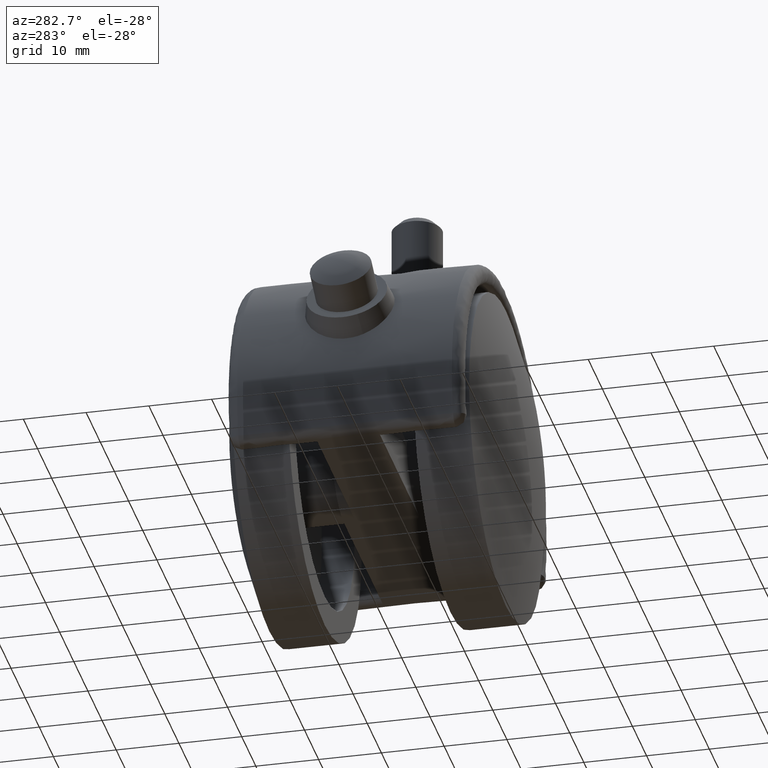
[diagram: clean part render]
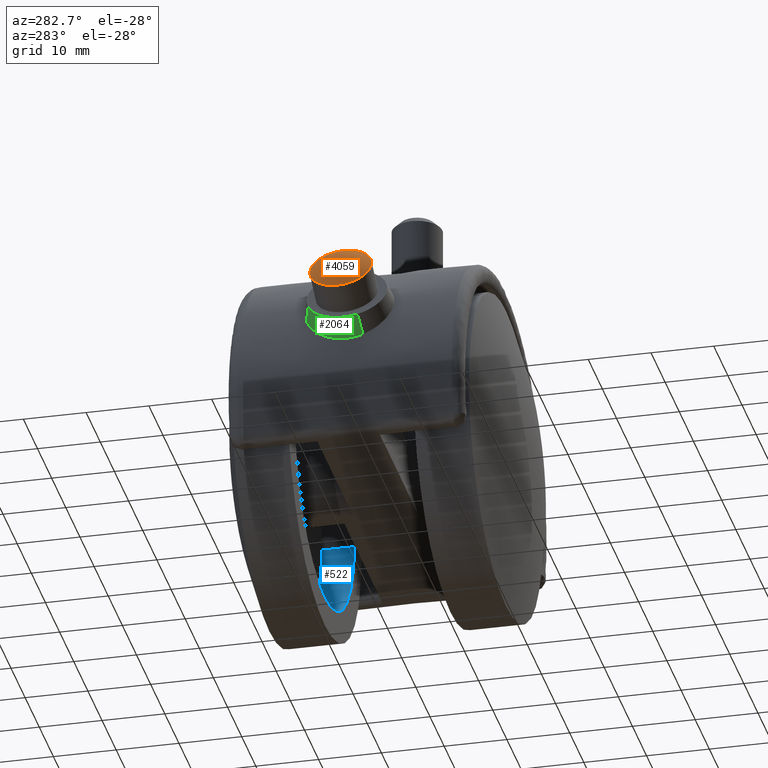
[diagram: same view with three faces highlighted in distinct colors, each labeled with its STEP entity id]
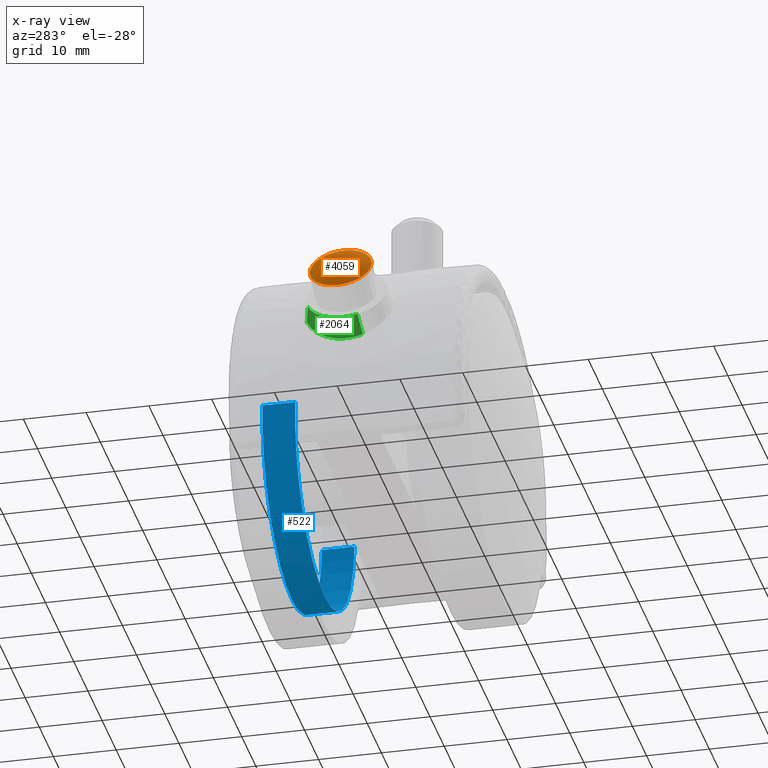
[diagram: x-ray of the same camera — body ghosted, the three highlighted faces saturated]
A machine part, auxiliary view with three faces highlighted in distinct colors.
The next image is the same camera in x-ray (body ghosted, the three faces saturated) — at least one of them is partly hidden behind the body in this view.
Their STEP definitions:

[orange] entity #4059 — the highlighted face is a freeform B-spline surface patch.
#1793=CARTESIAN_POINT('',(-33.455927655312657,4.865747021938725,18.051062189692932));
#1794=VERTEX_POINT('',#1793);
#1795=CARTESIAN_POINT('',(-30.799962047522211,0.0,22.842551026341781));
#1796=VERTEX_POINT('',#1795);
#1797=CARTESIAN_POINT('',(-33.455927655312657,4.865747021938725,18.051062189692932));
#1798=CARTESIAN_POINT('',(-33.316220272804124,4.900000450132801,18.303100981808146));
#1799=CARTESIAN_POINT('',(-33.175529388332649,4.900000450132800,18.556914058448150));
#1800=CARTESIAN_POINT('',(-30.799962047522204,4.900000450132801,22.842551026341777));
#1801=CARTESIAN_POINT('',(-30.799962047522211,0.0,22.842551026341781));
#1809=(BOUNDED_CURVE()B_SPLINE_CURVE(2,(#1797,#1798,#1799,#1800,#1801),.UNSPECIFIED.,.F.,.U.)B_SPLINE_CURVE_WITH_KNOTS((3,2,3),(0.229562473510235,0.250000000000000,0.500000000000000),.UNSPECIFIED.)CURVE()GEOMETRIC_REPRESENTATION_ITEM()RATIONAL_B_SPLINE_CURVE((0.956026754177284,0.976055948327310,1.0,0.707106781186547,1.0))REPRESENTATION_ITEM(''));
#1810=EDGE_CURVE('',#1794,#1796,#1809,.T.);
#1812=CARTESIAN_POINT('',(-33.030506821038557,-4.890861152804961,18.818541697831630));
#1813=VERTEX_POINT('',#1812);
#1814=CARTESIAN_POINT('',(-30.799962047522211,0.0,22.842551026341781));
#1815=CARTESIAN_POINT('',(-30.799962047522214,-4.609464721029318,22.842551026341781));
#1816=CARTESIAN_POINT('',(-33.030506821038564,-4.890861152804961,18.818541697831630));
#1824=(BOUNDED_CURVE()B_SPLINE_CURVE(2,(#1814,#1815,#1816),.UNSPECIFIED.,.F.,.U.)B_SPLINE_CURVE_WITH_KNOTS((3,3),(0.500000000000000,0.739333132983125),.UNSPECIFIED.)CURVE()GEOMETRIC_REPRESENTATION_ITEM()RATIONAL_B_SPLINE_CURVE((1.0,0.719603793247458,0.976072407604275))REPRESENTATION_ITEM(''));
#1825=EDGE_CURVE('',#1796,#1813,#1824,.T.);
#1892=CARTESIAN_POINT('',(-35.551096729143083,0.0,14.271277090554520));
#1893=VERTEX_POINT('',#1892);
#1894=CARTESIAN_POINT('',(-35.551096729143083,0.0,14.271277090554520));
#1895=CARTESIAN_POINT('',(-35.551096729143076,4.352055576817920,14.271277090554520));
#1896=CARTESIAN_POINT('',(-33.455927655312657,4.865747021938725,18.051062189692932));
#1904=(BOUNDED_CURVE()B_SPLINE_CURVE(2,(#1894,#1895,#1896),.UNSPECIFIED.,.F.,.U.)B_SPLINE_CURVE_WITH_KNOTS((3,3),(0.0,0.229562473510235),.UNSPECIFIED.)CURVE()GEOMETRIC_REPRESENTATION_ITEM()RATIONAL_B_SPLINE_CURVE((1.0,0.731050832859237,0.956026754177284))REPRESENTATION_ITEM(''));
#1905=EDGE_CURVE('',#1893,#1794,#1904,.T.);
#1939=CARTESIAN_POINT('',(-33.030506821038564,-4.890861152804961,18.818541697831630));
#1940=CARTESIAN_POINT('',(-33.102950418119917,-4.900000450132801,18.687849987938250));
#1941=CARTESIAN_POINT('',(-33.175529388332649,-4.900000450132800,18.556914058448150));
#1942=CARTESIAN_POINT('',(-35.551096729143083,-4.900000450132801,14.271277090554516));
#1943=CARTESIAN_POINT('',(-35.551096729143083,0.0,14.271277090554520));
#1951=(BOUNDED_CURVE()B_SPLINE_CURVE(2,(#1939,#1940,#1941,#1942,#1943),.UNSPECIFIED.,.F.,.U.)B_SPLINE_CURVE_WITH_KNOTS((3,2,3),(0.739333132983125,0.750000000000000,1.0),.UNSPECIFIED.)CURVE()GEOMETRIC_REPRESENTATION_ITEM()RATIONAL_B_SPLINE_CURVE((0.976072407604275,0.987502987939089,1.0,0.707106781186547,1.0))REPRESENTATION_ITEM(''));
#1952=EDGE_CURVE('',#1813,#1893,#1951,.T.);
#4029=CARTESIAN_POINT('',(-29.455881733607754,-4.988730261542560,22.199089514041539));
#4030=CARTESIAN_POINT('',(-30.388018948306780,-2.663087549163294,23.101609007809419));
#4031=CARTESIAN_POINT('',(-30.388018952618747,2.663102288835542,23.101609010199578));
#4032=CARTESIAN_POINT('',(-29.455872065869372,4.988754387558935,22.199080150142361));
#4033=CARTESIAN_POINT('',(-31.679185146443892,-5.326190869119451,20.772404487472123));
#4034=CARTESIAN_POINT('',(-32.840249244639693,-2.856300231945620,21.636899187114100));
#4035=CARTESIAN_POINT('',(-32.840249249264488,2.856316039588207,21.636899189677671));
#4036=CARTESIAN_POINT('',(-31.679173158079998,5.326216372830353,20.772395559642774));
#4037=CARTESIAN_POINT('',(-34.261430515609966,-5.326190869119451,16.113910783773751));
#4038=CARTESIAN_POINT('',(-35.609833818132827,-2.856300231945620,16.640436631100432));
#4039=CARTESIAN_POINT('',(-35.609833822757643,2.856316039588207,16.640436633664009));
#4040=CARTESIAN_POINT('',(-34.261416591516465,5.326216372830353,16.113905348092885));
#4041=CARTESIAN_POINT('',(-34.293156714210788,-4.988730191015766,13.472414387067468));
#4042=CARTESIAN_POINT('',(-35.552494086392315,-2.663087508968022,13.784649128373339));
#4043=CARTESIAN_POINT('',(-35.552494090704265,2.663102248640047,13.784649130763507));
#4044=CARTESIAN_POINT('',(-34.293143650053445,4.988754317031851,13.472411150470730));
#4052=(BOUNDED_SURFACE()B_SPLINE_SURFACE(2,2,((#4029,#4033,#4037,#4041),(#4030,#4034,#4038,#4042),(#4031,#4035,#4039,#4043),(#4032,#4036,#4040,#4044)),.UNSPECIFIED.,.F.,.F.,.U.)B_SPLINE_SURFACE_WITH_KNOTS((3,1,3),(3,1,3),(0.0,5.512628350733199,11.025287247933569),(0.0,5.512749071416997,11.025498757863531),.UNSPECIFIED.)GEOMETRIC_REPRESENTATION_ITEM()RATIONAL_B_SPLINE_SURFACE(((1.145101088485131,1.072548955480390,1.072548955480390,1.145101104673681),(1.072552133004741,1.0,1.0,1.072552149193291),(1.072552133004741,1.0,1.0,1.072552149193291),(1.145101892501032,1.072549759496291,1.072549759496291,1.145101908689582)))REPRESENTATION_ITEM('')SURFACE());
#4053=ORIENTED_EDGE('',*,*,#1952,.F.);
#4054=ORIENTED_EDGE('',*,*,#1825,.F.);
#4055=ORIENTED_EDGE('',*,*,#1810,.F.);
#4056=ORIENTED_EDGE('',*,*,#1905,.F.);
#4057=EDGE_LOOP('',(#4053,#4054,#4055,#4056));
#4058=FACE_OUTER_BOUND('',#4057,.T.);
#4059=ADVANCED_FACE('',(#4058),#4052,.T.);

[blue] entity #522 — the highlighted face is a freeform B-spline surface patch.
#420=CARTESIAN_POINT('',(20.853200053636993,-15.338726066619103,2.478718927791928));
#421=CARTESIAN_POINT('',(20.924139924420714,-15.338726066619095,1.881909301397531));
#422=CARTESIAN_POINT('',(20.960830766859200,-15.338726066619101,1.282019330231997));
#423=CARTESIAN_POINT('',(22.242850097091193,-15.338726066619094,-19.678811436627200));
#424=CARTESIAN_POINT('',(1.282019330231997,-15.338726066619101,-20.960830766859200));
#425=CARTESIAN_POINT('',(-19.678811436627200,-15.338726066619094,-22.242850097091193));
#426=CARTESIAN_POINT('',(-20.960830766859200,-15.338726066619101,-1.282019330231997));
#427=CARTESIAN_POINT('',(20.853200053636993,-9.866531848334523,2.478718927791928));
#428=CARTESIAN_POINT('',(20.924139924420714,-9.866531848334521,1.881909301397531));
#429=CARTESIAN_POINT('',(20.960830766859200,-9.866531848334521,1.282019330231997));
#430=CARTESIAN_POINT('',(22.242850097091193,-9.866531848334521,-19.678811436627200));
#431=CARTESIAN_POINT('',(1.282019330231997,-9.866531848334521,-20.960830766859200));
#432=CARTESIAN_POINT('',(-19.678811436627200,-9.866531848334521,-22.242850097091193));
#433=CARTESIAN_POINT('',(-20.960830766859200,-9.866531848334521,-1.282019330231997));
#441=(BOUNDED_SURFACE()B_SPLINE_SURFACE(2,1,((#420,#427),(#421,#428),(#422,#429),(#423,#430),(#424,#431),(#425,#432),(#426,#433)),.UNSPECIFIED.,.F.,.F.,.U.)B_SPLINE_SURFACE_WITH_KNOTS((3,2,2,3),(2,2),(0.0,1.391757569573601,36.185696808913569,70.979636048253539),(0.0,5.472194218284579),.UNSPECIFIED.)GEOMETRIC_REPRESENTATION_ITEM()RATIONAL_B_SPLINE_SURFACE(((0.977505800795127,0.977505800795127),(0.988284271247462,0.988284271247462),(1.0,1.0),(0.707106781186548,0.707106781186548),(1.0,1.0),(0.707106781186548,0.707106781186548),(1.0,1.0)))REPRESENTATION_ITEM('')SURFACE());
#442=CARTESIAN_POINT('',(20.853200299682619,-15.208513235725940,2.478716857834337));
#443=VERTEX_POINT('',#442);
#444=CARTESIAN_POINT('',(0.0,-15.208513235725951,-21.0));
#445=VERTEX_POINT('',#444);
#446=CARTESIAN_POINT('',(20.853200299682619,-15.208513235725945,2.478716857834337));
#447=CARTESIAN_POINT('',(20.999999999999996,-15.208513235725947,1.243705466769669));
#448=CARTESIAN_POINT('',(21.0,-15.208513235725951,0.0));
#449=CARTESIAN_POINT('',(21.000000000000007,-15.208513235725951,-21.000000000000007));
#450=CARTESIAN_POINT('',(0.0,-15.208513235725951,-21.0));
#458=(BOUNDED_CURVE()B_SPLINE_CURVE(2,(#446,#447,#448,#449,#450),.UNSPECIFIED.,.F.,.U.)B_SPLINE_CURVE_WITH_KNOTS((3,2,3),(0.229562490291466,0.250000000000000,0.500000000000000),.UNSPECIFIED.)CURVE()GEOMETRIC_REPRESENTATION_ITEM()RATIONAL_B_SPLINE_CURVE((0.956026787069185,0.976055967987745,1.0,0.707106781186547,1.0))REPRESENTATION_ITEM(''));
#459=EDGE_CURVE('',#443,#445,#458,.T.);
#460=ORIENTED_EDGE('',*,*,#459,.F.);
#461=CARTESIAN_POINT('',(20.853200296721891,-10.0,2.478716882742674));
#462=VERTEX_POINT('',#461);
#463=CARTESIAN_POINT('',(20.853200299682619,-15.208513235725940,2.478716857834337));
#464=CARTESIAN_POINT('',(20.853200296721891,-10.0,2.478716882742674));
#465=QUASI_UNIFORM_CURVE('',1,(#463,#464),.UNSPECIFIED.,.F.,.U.);
#466=EDGE_CURVE('',#443,#462,#465,.T.);
#467=ORIENTED_EDGE('',*,*,#466,.T.);
#468=CARTESIAN_POINT('',(0.0,-10.0,-21.0));
#469=VERTEX_POINT('',#468);
#470=CARTESIAN_POINT('',(20.853200296721891,-10.0,2.478716882742674));
#471=CARTESIAN_POINT('',(20.999999999999996,-10.0,1.243705479355500));
#472=CARTESIAN_POINT('',(21.0,-10.0,0.0));
#473=CARTESIAN_POINT('',(21.000000000000007,-10.0,-21.000000000000007));
#474=CARTESIAN_POINT('',(0.0,-10.0,-21.0));
#482=(BOUNDED_CURVE()B_SPLINE_CURVE(2,(#470,#471,#472,#473,#474),.UNSPECIFIED.,.F.,.U.)B_SPLINE_CURVE_WITH_KNOTS((3,2,3),(0.229562490089598,0.250000000000000,0.500000000000000),.UNSPECIFIED.)CURVE()GEOMETRIC_REPRESENTATION_ITEM()RATIONAL_B_SPLINE_CURVE((0.956026786673516,0.976055967751242,1.0,0.707106781186547,1.0))REPRESENTATION_ITEM(''));
#483=EDGE_CURVE('',#462,#469,#482,.T.);
#484=ORIENTED_EDGE('',*,*,#483,.T.);
#485=CARTESIAN_POINT('',(-20.960832298996650,-10.0,-1.281994279514901));
#486=VERTEX_POINT('',#485);
#487=CARTESIAN_POINT('',(0.0,-10.0,-21.0));
#488=CARTESIAN_POINT('',(-19.754851058547569,-10.0,-21.000000000000007));
#489=CARTESIAN_POINT('',(-20.960832298996646,-10.0,-1.281994279514901));
#497=(BOUNDED_CURVE()B_SPLINE_CURVE(2,(#487,#488,#489),.UNSPECIFIED.,.F.,.U.)B_SPLINE_CURVE_WITH_KNOTS((3,3),(0.500000000000000,0.739333168456194),.UNSPECIFIED.)CURVE()GEOMETRIC_REPRESENTATION_ITEM()RATIONAL_B_SPLINE_CURVE((1.0,0.719603751688173,0.976072483629940))REPRESENTATION_ITEM(''));
#498=EDGE_CURVE('',#469,#486,#497,.T.);
#499=ORIENTED_EDGE('',*,*,#498,.T.);
#500=CARTESIAN_POINT('',(-20.960832317673660,-15.208513235725629,-1.281993974136282));
#501=VERTEX_POINT('',#500);
#502=CARTESIAN_POINT('',(-20.960832317673660,-15.208513235725629,-1.281993974136282));
#503=CARTESIAN_POINT('',(-20.960832298996650,-10.0,-1.281994279514901));
#504=QUASI_UNIFORM_CURVE('',1,(#502,#503),.UNSPECIFIED.,.F.,.U.);
#505=EDGE_CURVE('',#501,#486,#504,.T.);
#506=ORIENTED_EDGE('',*,*,#505,.F.);
#507=CARTESIAN_POINT('',(0.0,-15.208513235725951,-21.0));
#508=CARTESIAN_POINT('',(-19.754851346894032,-15.208513235725952,-21.0));
#509=CARTESIAN_POINT('',(-20.960832317673660,-15.208513235725635,-1.281993974136283));
#517=(BOUNDED_CURVE()B_SPLINE_CURVE(2,(#507,#508,#509),.UNSPECIFIED.,.F.,.U.)B_SPLINE_CURVE_WITH_KNOTS((3,3),(0.500000000000000,0.739333170970031),.UNSPECIFIED.)CURVE()GEOMETRIC_REPRESENTATION_ITEM()RATIONAL_B_SPLINE_CURVE((1.0,0.719603748743029,0.976072489017581))REPRESENTATION_ITEM(''));
#518=EDGE_CURVE('',#445,#501,#517,.T.);
#519=ORIENTED_EDGE('',*,*,#518,.F.);
#520=EDGE_LOOP('',(#460,#467,#484,#499,#506,#519));
#521=FACE_OUTER_BOUND('',#520,.T.);
#522=ADVANCED_FACE('',(#521),#441,.F.);

[green] entity #2064 — the highlighted face is a freeform B-spline surface patch.
#1957=CARTESIAN_POINT('',(-31.756396942020661,-2.323610823775046,10.981672347800730));
#1958=CARTESIAN_POINT('',(-32.882905815211480,3.613835819387780,8.949396525234583));
#1959=CARTESIAN_POINT('',(-30.004374583052140,5.937446643162827,14.142404380600169));
#1960=CARTESIAN_POINT('',(-29.041683683161988,-2.692307398996225,8.399707459520949));
#1961=CARTESIAN_POINT('',(-30.346940201720951,4.187257528559888,6.044962345618140));
#1962=CARTESIAN_POINT('',(-27.011660965074299,6.879564927556114,12.061965420742331));
#1970=(BOUNDED_SURFACE()B_SPLINE_SURFACE(2,1,((#1957,#1960),(#1958,#1961),(#1959,#1962)),.UNSPECIFIED.,.F.,.F.,.U.)B_SPLINE_SURFACE_WITH_KNOTS((3,3),(2,2),(0.0,12.240209978489480),(0.0,3.764591335950367),.UNSPECIFIED.)GEOMETRIC_REPRESENTATION_ITEM()RATIONAL_B_SPLINE_SURFACE(((1.0,1.0),(0.707106781186548,0.707106781186548),(1.0,1.0)))REPRESENTATION_ITEM('')SURFACE());
#1971=CARTESIAN_POINT('',(-27.778086036857172,6.638301039503485,12.594755659644420));
#1972=VERTEX_POINT('',#1971);
#1973=CARTESIAN_POINT('',(-29.260213249171208,-2.662628507578598,8.607549488085503));
#1974=VERTEX_POINT('',#1973);
#1975=CARTESIAN_POINT('',(-27.778086036857172,6.638301039503485,12.594755659644420));
#1976=CARTESIAN_POINT('',(-27.804671612689621,6.614725664539500,12.536119196431780));
#1977=CARTESIAN_POINT('',(-27.830949285658718,6.590272796179548,12.477668427208370));
#1978=CARTESIAN_POINT('',(-27.946463707063732,6.477640031470103,12.218567737081351));
#1979=CARTESIAN_POINT('',(-28.032397642587160,6.379868394860700,12.019976601217611));
#1980=CARTESIAN_POINT('',(-28.156130439130859,6.216993306614456,11.725762980640420));
#1981=CARTESIAN_POINT('',(-28.196545483983019,6.159920286204829,11.628216814908381));
#1982=CARTESIAN_POINT('',(-28.274855208216579,6.041552748386622,11.436484040289621));
#1983=CARTESIAN_POINT('',(-28.312861073263381,5.980121819535320,11.342036695741429));
#1984=CARTESIAN_POINT('',(-28.497431226189288,5.661877700440829,10.876882593172260));
#1985=CARTESIAN_POINT('',(-28.627739327794298,5.372131747847775,10.527192706201349));
#1986=CARTESIAN_POINT('',(-28.772186020022321,4.964967903483309,10.120210519056270));
#1987=CARTESIAN_POINT('',(-28.800146145333489,4.881264794397393,10.040335377569850));
#1988=CARTESIAN_POINT('',(-28.854260927942398,4.709202097783509,9.883743237542454));
#1989=CARTESIAN_POINT('',(-28.880444322481509,4.620708357542058,9.806935375787985));
#1990=CARTESIAN_POINT('',(-28.955537475158891,4.351107118937831,9.583911383043272));
#1991=CARTESIAN_POINT('',(-29.001297526197899,4.165009024349370,9.444229167688997));
#1992=CARTESIAN_POINT('',(-29.126991686127131,3.587828246727534,9.052268298213631));
#1993=CARTESIAN_POINT('',(-29.195469818281790,3.178063052160873,8.826784431668514));
#1994=CARTESIAN_POINT('',(-29.264204993728800,2.632382450709184,8.594101089420418));
#1995=CARTESIAN_POINT('',(-29.277114605879071,2.521349637012921,8.549988433793944));
#1996=CARTESIAN_POINT('',(-29.300969606359079,2.298515783990096,8.467876024255936));
#1997=CARTESIAN_POINT('',(-29.311956114592700,2.186419557629584,8.429738431840116));
#1998=CARTESIAN_POINT('',(-29.342223475125749,1.848115179982575,8.324014515830507));
#1999=CARTESIAN_POINT('',(-29.358823040893299,1.619896050816570,8.265098002886177));
#2000=CARTESIAN_POINT('',(-29.385286853851699,1.158093229482943,8.170511415273131));
#2001=CARTESIAN_POINT('',(-29.395151137920251,0.924509797976568,8.134840128619162));
#2002=CARTESIAN_POINT('',(-29.404949462026291,0.569996129638390,8.099322979824271));
#2003=CARTESIAN_POINT('',(-29.407379828554269,0.451133926584753,8.090487206787060));
#2004=CARTESIAN_POINT('',(-29.409752432082801,0.271777756721625,8.081856759744014));
#2005=CARTESIAN_POINT('',(-29.410330464482591,0.211776828489280,8.079752617889898));
#2006=CARTESIAN_POINT('',(-29.411054545149380,0.092170938519100,8.077116576350640));
#2007=CARTESIAN_POINT('',(-29.411202132817149,0.032475388800932,8.076579075393687));
#2008=CARTESIAN_POINT('',(-29.410623284796760,-0.503828914133659,8.078687254096831));
#2009=CARTESIAN_POINT('',(-29.396788363519711,-0.973811158633142,8.129527249369904));
#2010=CARTESIAN_POINT('',(-29.362352594725991,-1.553090493977871,8.252445596819982));
#2011=CARTESIAN_POINT('',(-29.354594147854058,-1.668532769994983,8.280022416417623));
#2012=CARTESIAN_POINT('',(-29.337264465461111,-1.898580771638011,8.341216020358816));
#2013=CARTESIAN_POINT('',(-29.327661101081649,-2.013505330492232,8.374944210979056));
#2014=CARTESIAN_POINT('',(-29.300421992210779,-2.309074947478676,8.469884395450313));
#2015=CARTESIAN_POINT('',(-29.281444912079252,-2.487615227862285,8.535377687118720));
#2016=CARTESIAN_POINT('',(-29.260213249171208,-2.662628507578598,8.607549488085503));
#2017=B_SPLINE_CURVE_WITH_KNOTS('',3,(#1975,#1976,#1977,#1978,#1979,#1980,#1981,#1982,#1983,#1984,#1985,#1986,#1987,#1988,#1989,#1990,#1991,#1992,#1993,#1994,#1995,#1996,#1997,#1998,#1999,#2000,#2001,#2002,#2003,#2004,#2005,#2006,#2007,#2008,#2009,#2010,#2011,#2012,#2013,#2014,#2015,#2016),.UNSPECIFIED.,.F.,.U.,(4,2,2,2,2,2,2,2,2,2,2,2,2,2,2,2,2,2,2,2,4),(0.682967139668406,0.687499999999992,0.703124999999993,0.710937499999993,0.718749999999993,0.749999999999994,0.757812499999994,0.765624999999994,0.781249999999994,0.812499999999995,0.820312499999995,0.828124999999996,0.843749999999996,0.859374999999996,0.867187499999996,0.871093749999997,0.874999999999997,0.906249999999997,0.914062499999998,0.921874999999998,0.934430154299400),.UNSPECIFIED.);
#2018=EDGE_CURVE('',#1972,#1974,#2017,.T.);
#2019=ORIENTED_EDGE('',*,*,#2018,.T.);
#2020=CARTESIAN_POINT('',(-31.691799362987119,-2.332384091479928,10.920233564022841));
#2021=VERTEX_POINT('',#2020);
#2022=CARTESIAN_POINT('',(-31.691799362987119,-2.332384091479928,10.920233564022841));
#2023=CARTESIAN_POINT('',(-29.260213249171208,-2.662628507578598,8.607549488085503));
#2024=QUASI_UNIFORM_CURVE('',1,(#2022,#2023),.UNSPECIFIED.,.F.,.U.);
#2025=EDGE_CURVE('',#2021,#1974,#2024,.T.);
#2026=ORIENTED_EDGE('',*,*,#2025,.F.);
#2027=CARTESIAN_POINT('',(-31.905181295351579,0.0,10.535282364404180));
#2028=VERTEX_POINT('',#2027);
#2029=CARTESIAN_POINT('',(-31.691799362987116,-2.332384091479928,10.920233564022841));
#2030=CARTESIAN_POINT('',(-31.905181295351571,-1.207720213390333,10.535282364404178));
#2031=CARTESIAN_POINT('',(-31.905181295351579,0.0,10.535282364404180));
#2039=(BOUNDED_CURVE()B_SPLINE_CURVE(2,(#2029,#2030,#2031),.UNSPECIFIED.,.F.,.U.)B_SPLINE_CURVE_WITH_KNOTS((3,3),(0.938119153598874,1.0),.UNSPECIFIED.)CURVE()GEOMETRIC_REPRESENTATION_ITEM()RATIONAL_B_SPLINE_CURVE((0.890894019497755,0.927502078858693,1.0))REPRESENTATION_ITEM(''));
#2040=EDGE_CURVE('',#2021,#2028,#2039,.T.);
#2041=ORIENTED_EDGE('',*,*,#2040,.T.);
#2042=CARTESIAN_POINT('',(-29.933161885432501,5.959864686799653,14.092899586751210));
#2043=VERTEX_POINT('',#2042);
#2044=CARTESIAN_POINT('',(-31.905181295351579,0.0,10.535282364404180));
#2045=CARTESIAN_POINT('',(-31.905181295351589,4.368009231295897,10.535282364404180));
#2046=CARTESIAN_POINT('',(-29.933161885432501,5.959864686799653,14.092899586751203));
#2054=(BOUNDED_CURVE()B_SPLINE_CURVE(2,(#2044,#2045,#2046),.UNSPECIFIED.,.F.,.U.)B_SPLINE_CURVE_WITH_KNOTS((3,3),(0.0,0.188119153596891),.UNSPECIFIED.)CURVE()GEOMETRIC_REPRESENTATION_ITEM()RATIONAL_B_SPLINE_CURVE((1.0,0.779604702330178,0.890894019495409))REPRESENTATION_ITEM(''));
#2055=EDGE_CURVE('',#2028,#2043,#2054,.T.);
#2056=ORIENTED_EDGE('',*,*,#2055,.T.);
#2057=CARTESIAN_POINT('',(-29.933161885432501,5.959864686799653,14.092899586751210));
#2058=CARTESIAN_POINT('',(-27.778086036857172,6.638301039503485,12.594755659644420));
#2059=QUASI_UNIFORM_CURVE('',1,(#2057,#2058),.UNSPECIFIED.,.F.,.U.);
#2060=EDGE_CURVE('',#2043,#1972,#2059,.T.);
#2061=ORIENTED_EDGE('',*,*,#2060,.T.);
#2062=EDGE_LOOP('',(#2019,#2026,#2041,#2056,#2061));
#2063=FACE_OUTER_BOUND('',#2062,.T.);
#2064=ADVANCED_FACE('',(#2063),#1970,.T.);